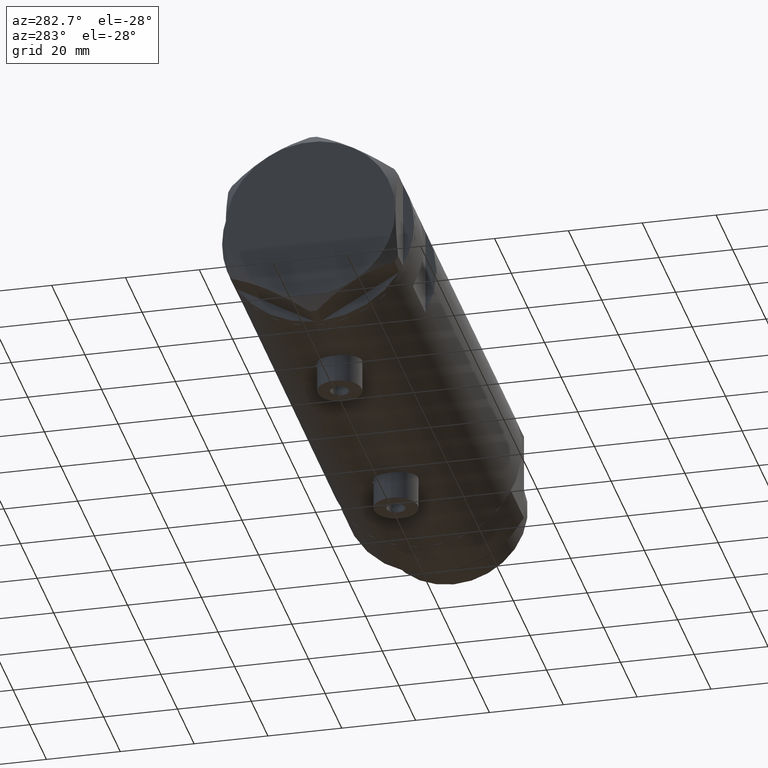
[diagram: clean part render]
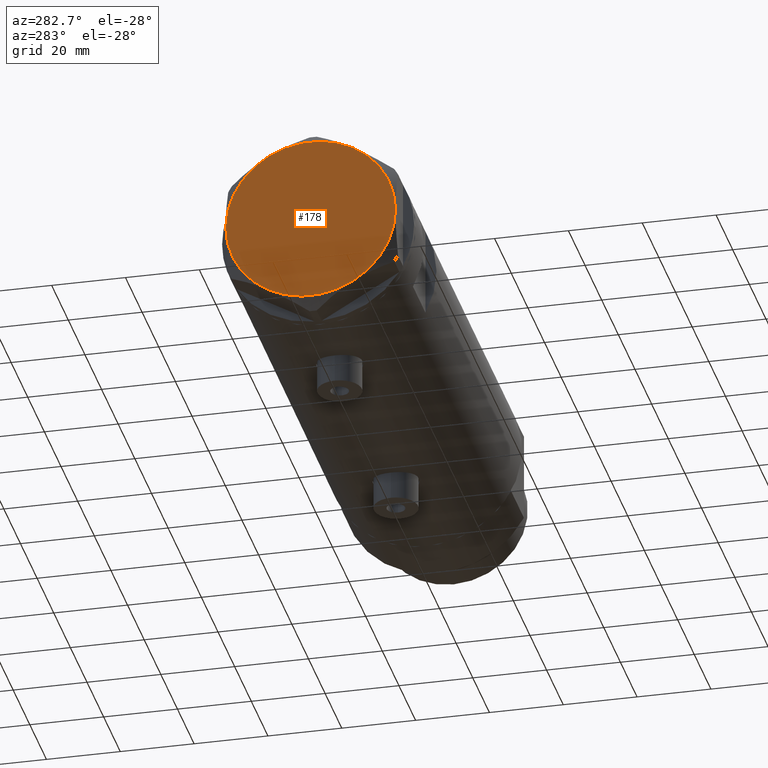
[diagram: same view with one face highlighted and labeled with its STEP entity id]
A machine part, auxiliary view. The second image highlights one B-rep face of the part: STEP entity #178.
In plain terms, the highlighted planar face has unit normal (-1, -0, 0).
Its self-contained STEP definition (entity closure, byte-faithful):
#112 = VERTEX_POINT ( 'NONE', #2127 ) ;
#178 = ADVANCED_FACE ( 'NONE', ( #1370 ), #2212, .T. ) ;
#180 = DIRECTION ( 'NONE',  ( 1.000000000000000000, 0.000000000000000000, 0.000000000000000000 ) ) ;
#256 = DIRECTION ( 'NONE',  ( 1.000000000000000000, 0.000000000000000000, -0.000000000000000000 ) ) ;
#295 = DIRECTION ( 'NONE',  ( 1.000000000000000000, 0.000000000000000000, 0.000000000000000000 ) ) ;
#361 = VERTEX_POINT ( 'NONE', #4266 ) ;
#455 = CIRCLE ( 'NONE', #3408, 23.00000000000004619 ) ;
#460 = ORIENTED_EDGE ( 'NONE', *, *, #1459, .T. ) ;
#640 = EDGE_CURVE ( 'NONE', #112, #2613, #2553, .T. ) ;
#668 = CARTESIAN_POINT ( 'NONE',  ( 0.000000000000000000, 0.000000000000000000, 9.000000000000000000 ) ) ;
#766 = AXIS2_PLACEMENT_3D ( 'NONE', #901, #2871, #3699 ) ;
#872 = AXIS2_PLACEMENT_3D ( 'NONE', #3085, #3115, #3878 ) ;
#901 = CARTESIAN_POINT ( 'NONE',  ( 0.000000000000000000, 0.000000000000000000, 9.000000000000000000 ) ) ;
#948 = CARTESIAN_POINT ( 'NONE',  ( -11.50000000000004441, 19.91858428704211548, 9.000000000000000000 ) ) ;
#1144 = ORIENTED_EDGE ( 'NONE', *, *, #1723, .T. ) ;
#1296 = EDGE_CURVE ( 'NONE', #1749, #3894, #455, .T. ) ;
#1370 = FACE_OUTER_BOUND ( 'NONE', #3338, .T. ) ;
#1459 = EDGE_CURVE ( 'NONE', #3894, #1545, #3830, .T. ) ;
#1515 = EDGE_CURVE ( 'NONE', #361, #1749, #2564, .T. ) ;
#1545 = VERTEX_POINT ( 'NONE', #3441 ) ;
#1707 = CARTESIAN_POINT ( 'NONE',  ( -23.00000000000004619, -8.112498833180673323E-14, 9.000000000000000000 ) ) ;
#1723 = EDGE_CURVE ( 'NONE', #2613, #361, #1931, .T. ) ;
#1749 = VERTEX_POINT ( 'NONE', #948 ) ;
#1883 = AXIS2_PLACEMENT_3D ( 'NONE', #3785, #2433, #180 ) ;
#1931 = CIRCLE ( 'NONE', #766, 23.00000000000004619 ) ;
#2127 = CARTESIAN_POINT ( 'NONE',  ( 11.50000000000018296, -19.91858428704203732, 9.000000000000000000 ) ) ;
#2212 = PLANE ( 'NONE',  #2550 ) ;
#2223 = AXIS2_PLACEMENT_3D ( 'NONE', #3487, #4453, #3213 ) ;
#2340 = EDGE_CURVE ( 'NONE', #1545, #112, #3074, .T. ) ;
#2433 = DIRECTION ( 'NONE',  ( 0.000000000000000000, 0.000000000000000000, 1.000000000000000000 ) ) ;
#2550 = AXIS2_PLACEMENT_3D ( 'NONE', #668, #5046, #256 ) ;
#2553 = CIRCLE ( 'NONE', #872, 23.00000000000004619 ) ;
#2564 = CIRCLE ( 'NONE', #3916, 23.00000000000004619 ) ;
#2613 = VERTEX_POINT ( 'NONE', #2615 ) ;
#2615 = CARTESIAN_POINT ( 'NONE',  ( 22.99999999999995026, 2.373657066004705010E-13, 9.000000000000000000 ) ) ;
#2622 = DIRECTION ( 'NONE',  ( 0.000000000000000000, 0.000000000000000000, 1.000000000000000000 ) ) ;
#2644 = DIRECTION ( 'NONE',  ( 1.000000000000000000, 0.000000000000000000, 0.000000000000000000 ) ) ;
#2871 = DIRECTION ( 'NONE',  ( 0.000000000000000000, 0.000000000000000000, 1.000000000000000000 ) ) ;
#2902 = ORIENTED_EDGE ( 'NONE', *, *, #640, .T. ) ;
#2966 = ORIENTED_EDGE ( 'NONE', *, *, #1296, .T. ) ;
#3074 = CIRCLE ( 'NONE', #2223, 23.00000000000004619 ) ;
#3085 = CARTESIAN_POINT ( 'NONE',  ( 0.000000000000000000, 0.000000000000000000, 9.000000000000000000 ) ) ;
#3115 = DIRECTION ( 'NONE',  ( 0.000000000000000000, 0.000000000000000000, 1.000000000000000000 ) ) ;
#3213 = DIRECTION ( 'NONE',  ( 1.000000000000000000, 0.000000000000000000, 0.000000000000000000 ) ) ;
#3338 = EDGE_LOOP ( 'NONE', ( #2902, #1144, #4884, #2966, #460, #4408 ) ) ;
#3408 = AXIS2_PLACEMENT_3D ( 'NONE', #3505, #4309, #295 ) ;
#3441 = CARTESIAN_POINT ( 'NONE',  ( -11.49999999999990585, -19.91858428704219364, 9.000000000000000000 ) ) ;
#3487 = CARTESIAN_POINT ( 'NONE',  ( 0.000000000000000000, 0.000000000000000000, 9.000000000000000000 ) ) ;
#3505 = CARTESIAN_POINT ( 'NONE',  ( 0.000000000000000000, 0.000000000000000000, 9.000000000000000000 ) ) ;
#3699 = DIRECTION ( 'NONE',  ( 1.000000000000000000, 0.000000000000000000, 0.000000000000000000 ) ) ;
#3785 = CARTESIAN_POINT ( 'NONE',  ( 0.000000000000000000, 0.000000000000000000, 9.000000000000000000 ) ) ;
#3830 = CIRCLE ( 'NONE', #1883, 23.00000000000004619 ) ;
#3878 = DIRECTION ( 'NONE',  ( 1.000000000000000000, 0.000000000000000000, 0.000000000000000000 ) ) ;
#3894 = VERTEX_POINT ( 'NONE', #1707 ) ;
#3916 = AXIS2_PLACEMENT_3D ( 'NONE', #5149, #2622, #2644 ) ;
#4266 = CARTESIAN_POINT ( 'NONE',  ( 11.49999999999990408, 19.91858428704219364, 9.000000000000000000 ) ) ;
#4309 = DIRECTION ( 'NONE',  ( 0.000000000000000000, 0.000000000000000000, 1.000000000000000000 ) ) ;
#4408 = ORIENTED_EDGE ( 'NONE', *, *, #2340, .T. ) ;
#4453 = DIRECTION ( 'NONE',  ( 0.000000000000000000, 0.000000000000000000, 1.000000000000000000 ) ) ;
#4884 = ORIENTED_EDGE ( 'NONE', *, *, #1515, .T. ) ;
#5046 = DIRECTION ( 'NONE',  ( 0.000000000000000000, 0.000000000000000000, 1.000000000000000000 ) ) ;
#5149 = CARTESIAN_POINT ( 'NONE',  ( 0.000000000000000000, 0.000000000000000000, 9.000000000000000000 ) ) ;